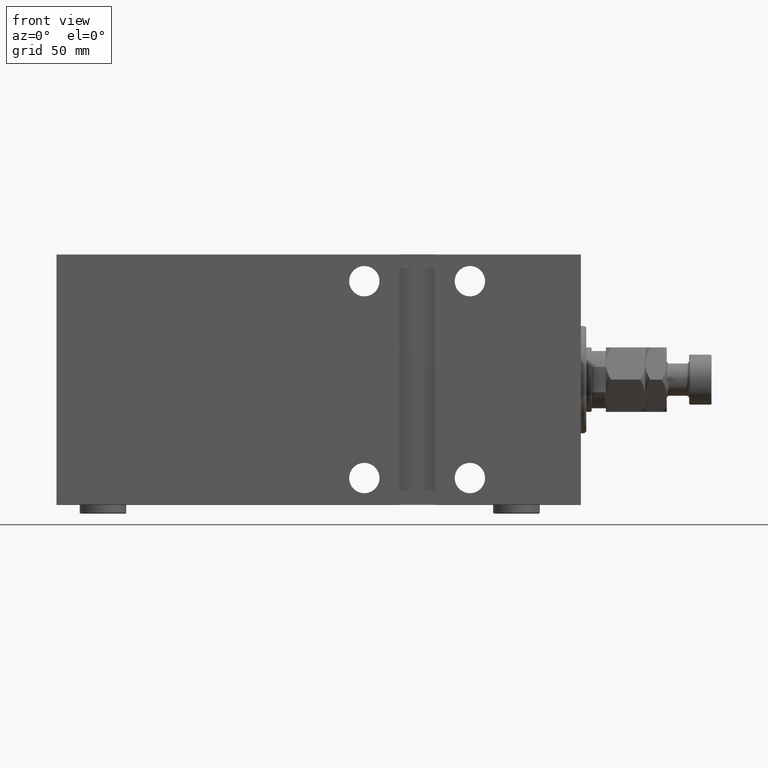
[diagram: clean part render]
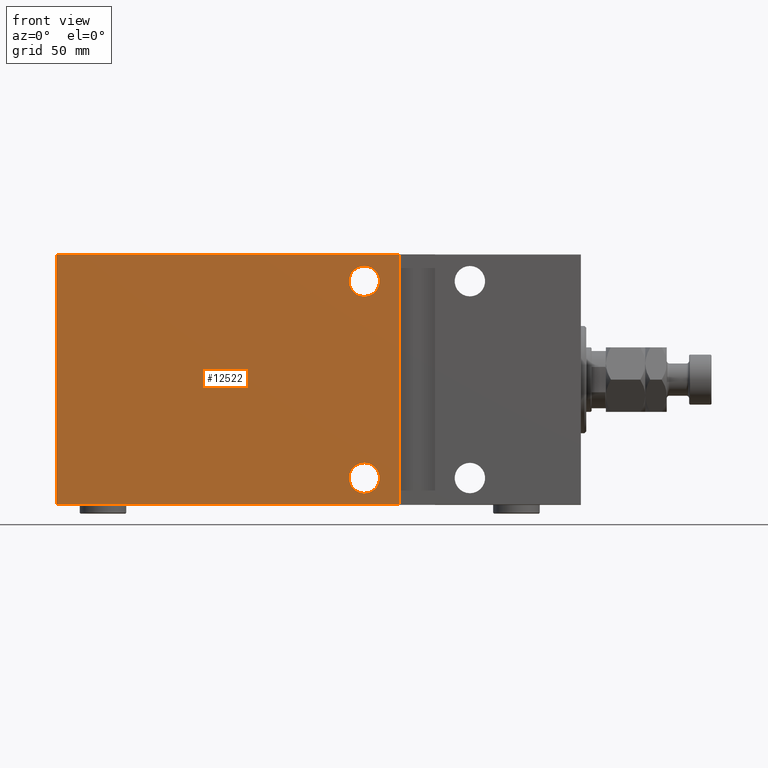
[diagram: same view with one face highlighted and labeled with its STEP entity id]
A machine part, front view. The second image highlights one B-rep face of the part: STEP entity #12522.
In plain terms, the highlighted planar face has unit normal (-0, 1, -0).
Its self-contained STEP definition (entity closure, byte-faithful):
#94 = VERTEX_POINT ( 'NONE', #15151 ) ;
#129 = EDGE_LOOP ( 'NONE', ( #25820, #7105, #3441, #41945 ) ) ;
#624 = LINE ( 'NONE', #19235, #27737 ) ;
#689 = ORIENTED_EDGE ( 'NONE', *, *, #7996, .F. ) ;
#761 = DIRECTION ( 'NONE',  ( 0.000000000000000000, -1.000000000000000000, -1.982541115402065110E-16 ) ) ;
#784 = EDGE_LOOP ( 'NONE', ( #8603, #689 ) ) ;
#2073 = CARTESIAN_POINT ( 'NONE',  ( 121.0000000000000000, 55.00000000000004263, -54.99999999999999289 ) ) ;
#2398 = CARTESIAN_POINT ( 'NONE',  ( 121.0000000000000000, 55.00000000000004263, -54.99999999999999289 ) ) ;
#2519 = VECTOR ( 'NONE', #22728, 1000.000000000000000 ) ;
#2760 = DIRECTION ( 'NONE',  ( 0.000000000000000000, 0.000000000000000000, 1.000000000000000000 ) ) ;
#3140 = AXIS2_PLACEMENT_3D ( 'NONE', #11753, #40187, #15714 ) ;
#3441 = ORIENTED_EDGE ( 'NONE', *, *, #3744, .F. ) ;
#3712 = VERTEX_POINT ( 'NONE', #4275 ) ;
#3744 = EDGE_CURVE ( 'NONE', #43773, #12887, #7521, .T. ) ;
#4275 = CARTESIAN_POINT ( 'NONE',  ( 293.0000000000000000, 55.00000000000002132, -69.69999999999998863 ) ) ;
#4711 = CIRCLE ( 'NONE', #16606, 8.500000000000007105 ) ;
#6354 = DIRECTION ( 'NONE',  ( 0.000000000000000000, 0.000000000000000000, 1.000000000000000000 ) ) ;
#6373 = CARTESIAN_POINT ( 'NONE',  ( 121.0000000000000142, 55.00000000000004263, 46.50000000000001421 ) ) ;
#7105 = ORIENTED_EDGE ( 'NONE', *, *, #37678, .T. ) ;
#7521 = LINE ( 'NONE', #21745, #19488 ) ;
#7740 = CARTESIAN_POINT ( 'NONE',  ( 121.0000000000000142, 55.00000000000004263, 55.00000000000000711 ) ) ;
#7996 = EDGE_CURVE ( 'NONE', #23710, #94, #31436, .T. ) ;
#8112 = VERTEX_POINT ( 'NONE', #23862 ) ;
#8431 = LINE ( 'NONE', #37105, #15923 ) ;
#8507 = CARTESIAN_POINT ( 'NONE',  ( 293.0000000000000000, 54.99999999999999289, 69.70000000000001705 ) ) ;
#8603 = ORIENTED_EDGE ( 'NONE', *, *, #23835, .F. ) ;
#11213 = DIRECTION ( 'NONE',  ( 0.000000000000000000, 0.000000000000000000, 1.000000000000000000 ) ) ;
#11231 = DIRECTION ( 'NONE',  ( -1.982541115402065110E-16, 0.000000000000000000, -1.000000000000000000 ) ) ;
#11314 = DIRECTION ( 'NONE',  ( -1.000000000000000000, 0.000000000000000000, 0.000000000000000000 ) ) ;
#11695 = FACE_BOUND ( 'NONE', #784, .T. ) ;
#11753 = CARTESIAN_POINT ( 'NONE',  ( 121.0000000000000142, 55.00000000000004263, 55.00000000000000711 ) ) ;
#12145 = FACE_OUTER_BOUND ( 'NONE', #129, .T. ) ;
#12522 = ADVANCED_FACE ( 'NONE', ( #43630, #11695, #12145 ), #22419, .F. ) ;
#12554 = EDGE_CURVE ( 'NONE', #3712, #8112, #8431, .T. ) ;
#12887 = VERTEX_POINT ( 'NONE', #20254 ) ;
#14959 = DIRECTION ( 'NONE',  ( 0.000000000000000000, 1.982541115402065110E-16, -1.000000000000000000 ) ) ;
#15151 = CARTESIAN_POINT ( 'NONE',  ( 121.0000000000000142, 55.00000000000004263, 63.50000000000000000 ) ) ;
#15714 = DIRECTION ( 'NONE',  ( 0.000000000000000000, 0.000000000000000000, 1.000000000000000000 ) ) ;
#15923 = VECTOR ( 'NONE', #36878, 1000.000000000000000 ) ;
#16606 = AXIS2_PLACEMENT_3D ( 'NONE', #2398, #41752, #6354 ) ;
#19235 = CARTESIAN_POINT ( 'NONE',  ( 293.0000000000000000, 55.00000000000002132, -69.69999999999998863 ) ) ;
#19413 = CARTESIAN_POINT ( 'NONE',  ( 101.5000000000000000, 55.00000000000000711, 69.70000000000001705 ) ) ;
#19488 = VECTOR ( 'NONE', #11231, 1000.000000000000000 ) ;
#20254 = CARTESIAN_POINT ( 'NONE',  ( 101.4999999999999858, 55.00000000000000711, -69.69999999999998863 ) ) ;
#20634 = EDGE_CURVE ( 'NONE', #41093, #31401, #24207, .T. ) ;
#21745 = CARTESIAN_POINT ( 'NONE',  ( 101.5000000000000000, 55.00000000000000711, 70.00000000000000000 ) ) ;
#22419 = PLANE ( 'NONE',  #35226 ) ;
#22728 = DIRECTION ( 'NONE',  ( 1.000000000000000000, 0.000000000000000000, 0.000000000000000000 ) ) ;
#22870 = DIRECTION ( 'NONE',  ( 0.000000000000000000, 1.000000000000000000, 0.000000000000000000 ) ) ;
#23005 = EDGE_LOOP ( 'NONE', ( #24144, #43291 ) ) ;
#23710 = VERTEX_POINT ( 'NONE', #6373 ) ;
#23835 = EDGE_CURVE ( 'NONE', #94, #23710, #31770, .T. ) ;
#23862 = CARTESIAN_POINT ( 'NONE',  ( 293.0000000000000000, 54.99999999999999289, 69.70000000000001705 ) ) ;
#24144 = ORIENTED_EDGE ( 'NONE', *, *, #40180, .F. ) ;
#24207 = CIRCLE ( 'NONE', #32399, 8.500000000000007105 ) ;
#25820 = ORIENTED_EDGE ( 'NONE', *, *, #12554, .F. ) ;
#27281 = AXIS2_PLACEMENT_3D ( 'NONE', #7740, #22870, #11213 ) ;
#27737 = VECTOR ( 'NONE', #11314, 1000.000000000000000 ) ;
#31401 = VERTEX_POINT ( 'NONE', #37252 ) ;
#31436 = CIRCLE ( 'NONE', #3140, 8.499999999999992895 ) ;
#31770 = CIRCLE ( 'NONE', #27281, 8.499999999999992895 ) ;
#32399 = AXIS2_PLACEMENT_3D ( 'NONE', #2073, #41429, #2760 ) ;
#35226 = AXIS2_PLACEMENT_3D ( 'NONE', #40357, #761, #14959 ) ;
#36719 = LINE ( 'NONE', #8507, #2519 ) ;
#36878 = DIRECTION ( 'NONE',  ( 0.000000000000000000, -1.982541115402065110E-16, 1.000000000000000000 ) ) ;
#37105 = CARTESIAN_POINT ( 'NONE',  ( 293.0000000000000000, 55.00000000000002132, -70.00000000000000000 ) ) ;
#37252 = CARTESIAN_POINT ( 'NONE',  ( 121.0000000000000000, 55.00000000000004263, -46.49999999999998579 ) ) ;
#37678 = EDGE_CURVE ( 'NONE', #3712, #12887, #624, .T. ) ;
#40180 = EDGE_CURVE ( 'NONE', #31401, #41093, #4711, .T. ) ;
#40187 = DIRECTION ( 'NONE',  ( 0.000000000000000000, 1.000000000000000000, 0.000000000000000000 ) ) ;
#40357 = CARTESIAN_POINT ( 'NONE',  ( 293.0000000000000000, 55.00000000000002132, -70.00000000000000000 ) ) ;
#40430 = CARTESIAN_POINT ( 'NONE',  ( 121.0000000000000000, 55.00000000000004263, -63.50000000000000000 ) ) ;
#41093 = VERTEX_POINT ( 'NONE', #40430 ) ;
#41130 = EDGE_CURVE ( 'NONE', #43773, #8112, #36719, .T. ) ;
#41429 = DIRECTION ( 'NONE',  ( 0.000000000000000000, 1.000000000000000000, 0.000000000000000000 ) ) ;
#41752 = DIRECTION ( 'NONE',  ( 0.000000000000000000, 1.000000000000000000, 0.000000000000000000 ) ) ;
#41945 = ORIENTED_EDGE ( 'NONE', *, *, #41130, .T. ) ;
#43291 = ORIENTED_EDGE ( 'NONE', *, *, #20634, .F. ) ;
#43630 = FACE_BOUND ( 'NONE', #23005, .T. ) ;
#43773 = VERTEX_POINT ( 'NONE', #19413 ) ;